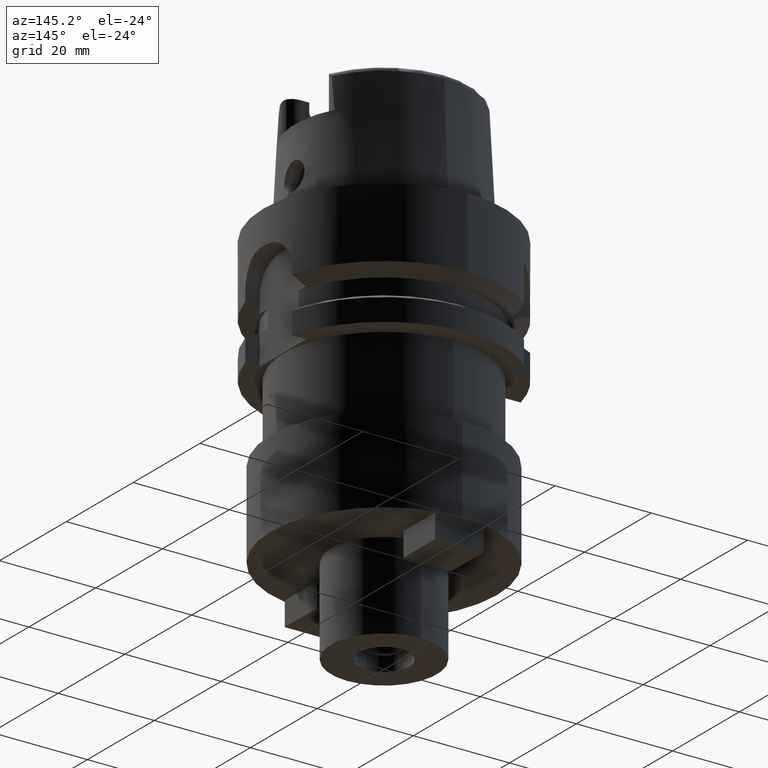
[diagram: clean part render]
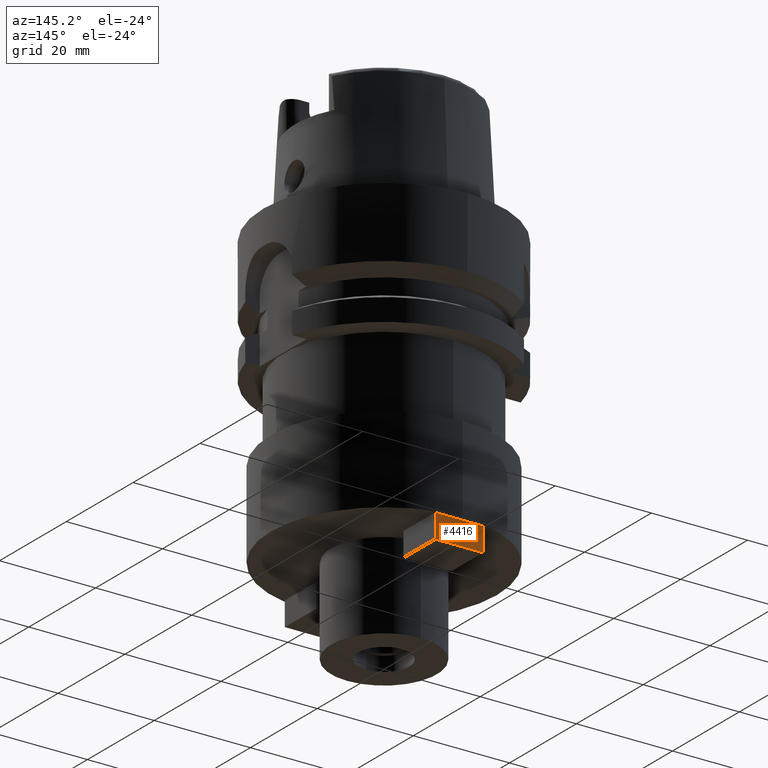
[diagram: same view with one face highlighted and labeled with its STEP entity id]
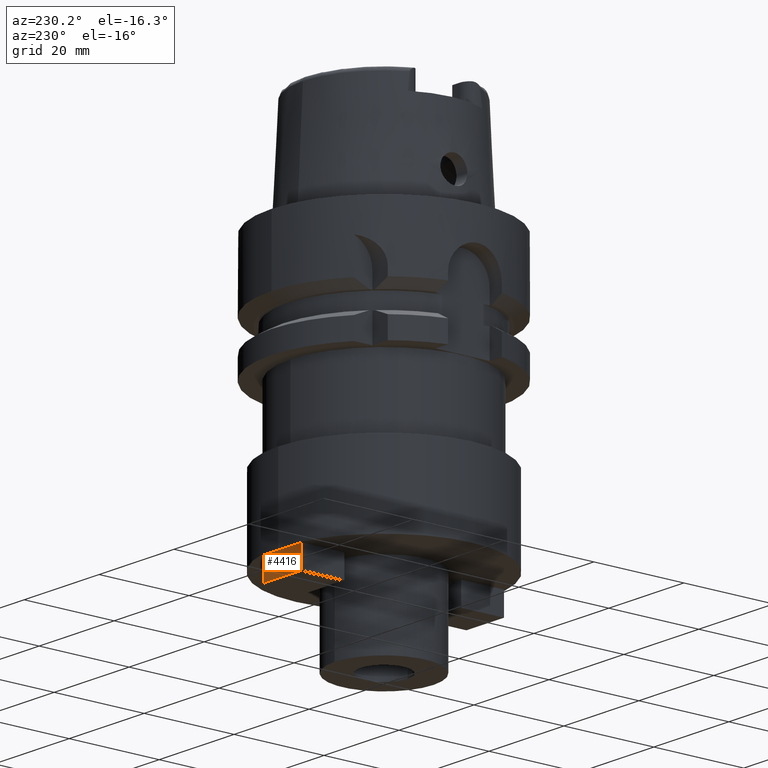
[diagram: same view with one face highlighted and labeled with its STEP entity id]
A machine part, auxiliary view. The second image highlights one B-rep face of the part: STEP entity #4416.
A second angle (auxiliary view) of the same face is appended — the face is thin or edge-on in the first view.
In plain terms, the highlighted planar face has unit normal (0, 1, 0).
Its self-contained STEP definition (entity closure, byte-faithful):
#2213=DIRECTION('',(0.E0,0.E0,-1.E0));
#2214=VECTOR('',#2213,5.E0);
#2215=CARTESIAN_POINT('',(5.E0,2.25E1,-6.E1));
#2216=LINE('',#2215,#2214);
#2234=DIRECTION('',(-1.E0,0.E0,0.E0));
#2235=VECTOR('',#2234,1.E1);
#2236=CARTESIAN_POINT('',(5.E0,2.25E1,-6.E1));
#2237=LINE('',#2236,#2235);
#2241=DIRECTION('',(0.E0,0.E0,-1.E0));
#2242=VECTOR('',#2241,5.E0);
#2243=CARTESIAN_POINT('',(-5.E0,2.25E1,-6.E1));
#2244=LINE('',#2243,#2242);
#2255=DIRECTION('',(-1.E0,0.E0,0.E0));
#2256=VECTOR('',#2255,1.E1);
#2257=CARTESIAN_POINT('',(5.E0,2.25E1,-6.5E1));
#2258=LINE('',#2257,#2256);
#2607=CARTESIAN_POINT('',(-5.E0,2.25E1,-6.E1));
#2609=VERTEX_POINT('',#2607);
#2610=CARTESIAN_POINT('',(5.E0,2.25E1,-6.E1));
#2611=VERTEX_POINT('',#2610);
#2795=CARTESIAN_POINT('',(-5.E0,2.25E1,-6.5E1));
#2796=VERTEX_POINT('',#2795);
#2799=CARTESIAN_POINT('',(5.E0,2.25E1,-6.5E1));
#2800=VERTEX_POINT('',#2799);
#4404=CARTESIAN_POINT('',(-5.E0,2.25E1,-6.5E1));
#4405=DIRECTION('',(0.E0,1.E0,0.E0));
#4406=DIRECTION('',(0.E0,0.E0,1.E0));
#4407=AXIS2_PLACEMENT_3D('',#4404,#4405,#4406);
#4408=PLANE('',#4407);
#4409=ORIENTED_EDGE('',*,*,#3595,.T.);
#4410=ORIENTED_EDGE('',*,*,#4371,.T.);
#4412=ORIENTED_EDGE('',*,*,#4411,.F.);
#4413=ORIENTED_EDGE('',*,*,#4396,.F.);
#4414=EDGE_LOOP('',(#4409,#4410,#4412,#4413));
#4415=FACE_OUTER_BOUND('',#4414,.F.);
#3595=EDGE_CURVE('',#2611,#2609,#2237,.T.);
#4371=EDGE_CURVE('',#2609,#2796,#2244,.T.);
#4396=EDGE_CURVE('',#2611,#2800,#2216,.T.);
#4411=EDGE_CURVE('',#2800,#2796,#2258,.T.);
#4416=ADVANCED_FACE('',(#4415),#4408,.T.);